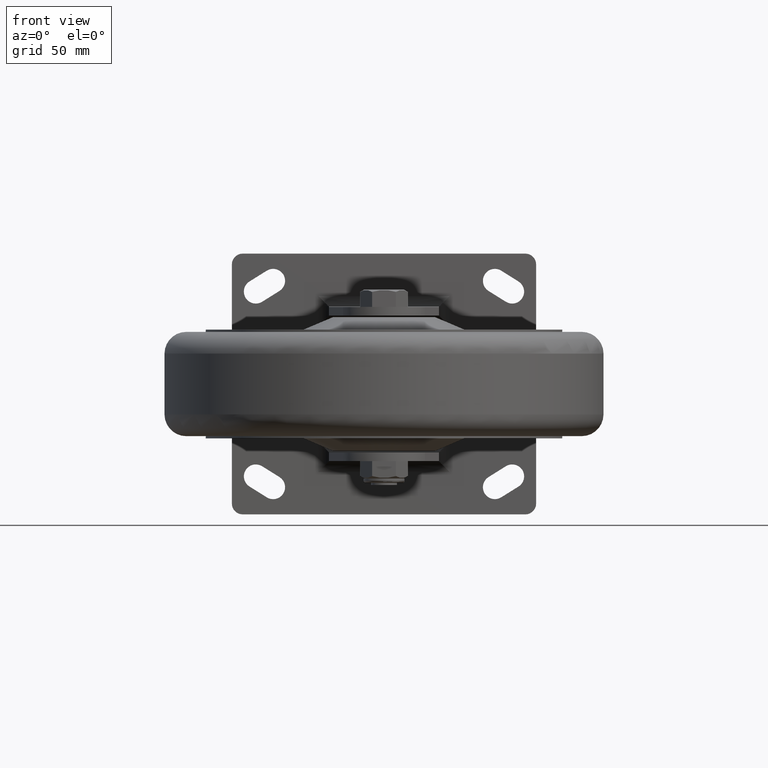
[diagram: clean part render]
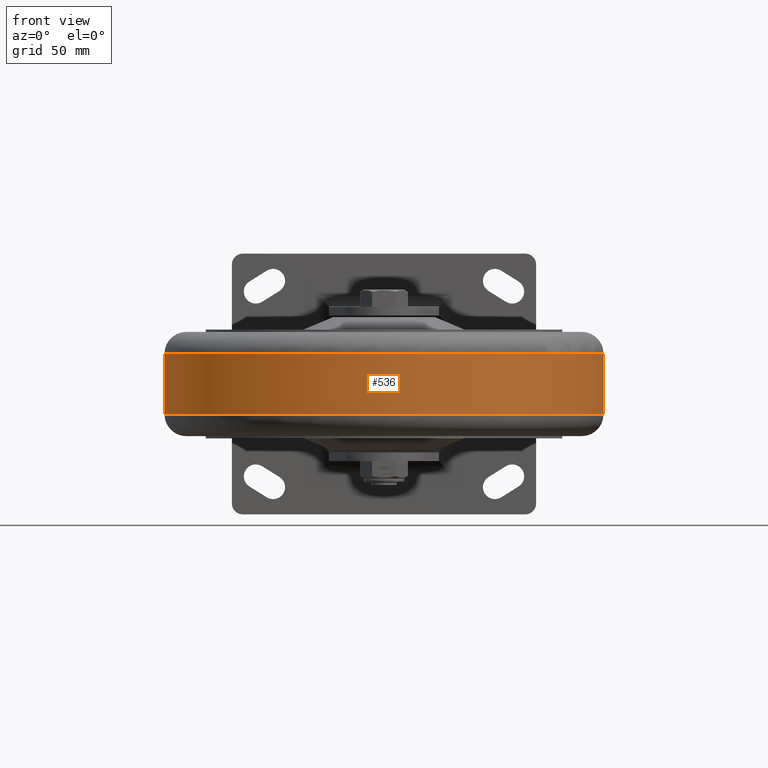
[diagram: same view with one face highlighted and labeled with its STEP entity id]
A machine part, front view. The second image highlights one B-rep face of the part: STEP entity #536.
In plain terms, the highlighted cylindrical surface (partial cylindrical patch) has radius 101 mm, axis along (0, 0, -1).
Its self-contained STEP definition (entity closure, byte-faithful):
#355 = CYLINDRICAL_SURFACE ( 'NONE', #5158, 101.0000000000000000 ) ;
#499 = VECTOR ( 'NONE', #3261, 1000.000000000000000 ) ;
#536 = ADVANCED_FACE ( 'NONE', ( #3874 ), #355, .T. ) ;
#684 = CARTESIAN_POINT ( 'NONE',  ( 101.0000000000000000, 1.236893267138826732E-14, 30.75500100071695186 ) ) ;
#789 = EDGE_CURVE ( 'NONE', #2749, #5346, #3833, .T. ) ;
#858 = CARTESIAN_POINT ( 'NONE',  ( 0.000000000000000000, 0.000000000000000000, -13.99999999999999822 ) ) ;
#882 = DIRECTION ( 'NONE',  ( -1.000000000000000000, 0.000000000000000000, 0.000000000000000000 ) ) ;
#1074 = CIRCLE ( 'NONE', #3583, 101.0000000000000000 ) ;
#1086 = VERTEX_POINT ( 'NONE', #5053 ) ;
#1134 = EDGE_CURVE ( 'NONE', #5346, #1086, #2796, .T. ) ;
#1613 = LINE ( 'NONE', #684, #499 ) ;
#1758 = DIRECTION ( 'NONE',  ( -1.000000000000000000, 0.000000000000000000, 0.000000000000000000 ) ) ;
#1873 = EDGE_LOOP ( 'NONE', ( #4747, #2164, #4829, #4514 ) ) ;
#1979 = CARTESIAN_POINT ( 'NONE',  ( 101.0000000000000000, 1.236893267138826732E-14, 13.99999999999999822 ) ) ;
#2164 = ORIENTED_EDGE ( 'NONE', *, *, #2773, .T. ) ;
#2208 = DIRECTION ( 'NONE',  ( 0.000000000000000000, 0.000000000000000000, -1.000000000000000000 ) ) ;
#2313 = VECTOR ( 'NONE', #2208, 1000.000000000000000 ) ;
#2505 = CARTESIAN_POINT ( 'NONE',  ( 0.000000000000000000, 0.000000000000000000, 30.75500100071695186 ) ) ;
#2645 = DIRECTION ( 'NONE',  ( -0.000000000000000000, -0.000000000000000000, 1.000000000000000000 ) ) ;
#2749 = VERTEX_POINT ( 'NONE', #3179 ) ;
#2773 = EDGE_CURVE ( 'NONE', #5287, #2749, #1074, .T. ) ;
#2796 = CIRCLE ( 'NONE', #3702, 101.0000000000000000 ) ;
#3075 = CARTESIAN_POINT ( 'NONE',  ( -101.0000000000000000, 0.000000000000000000, 30.75500100071695186 ) ) ;
#3179 = CARTESIAN_POINT ( 'NONE',  ( -101.0000000000000000, 0.000000000000000000, 13.99999999999999822 ) ) ;
#3207 = DIRECTION ( 'NONE',  ( -0.000000000000000000, -0.000000000000000000, -1.000000000000000000 ) ) ;
#3261 = DIRECTION ( 'NONE',  ( 0.000000000000000000, 0.000000000000000000, -1.000000000000000000 ) ) ;
#3583 = AXIS2_PLACEMENT_3D ( 'NONE', #4853, #3207, #4488 ) ;
#3702 = AXIS2_PLACEMENT_3D ( 'NONE', #858, #2645, #1758 ) ;
#3833 = LINE ( 'NONE', #3075, #2313 ) ;
#3874 = FACE_OUTER_BOUND ( 'NONE', #1873, .T. ) ;
#4250 = EDGE_CURVE ( 'NONE', #5287, #1086, #1613, .T. ) ;
#4267 = DIRECTION ( 'NONE',  ( 0.000000000000000000, 0.000000000000000000, -1.000000000000000000 ) ) ;
#4488 = DIRECTION ( 'NONE',  ( 1.000000000000000000, 0.000000000000000000, 0.000000000000000000 ) ) ;
#4514 = ORIENTED_EDGE ( 'NONE', *, *, #1134, .T. ) ;
#4747 = ORIENTED_EDGE ( 'NONE', *, *, #4250, .F. ) ;
#4829 = ORIENTED_EDGE ( 'NONE', *, *, #789, .T. ) ;
#4853 = CARTESIAN_POINT ( 'NONE',  ( 0.000000000000000000, 0.000000000000000000, 13.99999999999999822 ) ) ;
#5053 = CARTESIAN_POINT ( 'NONE',  ( 101.0000000000000000, 1.236893267138826732E-14, -13.99999999999999822 ) ) ;
#5158 = AXIS2_PLACEMENT_3D ( 'NONE', #2505, #4267, #882 ) ;
#5177 = CARTESIAN_POINT ( 'NONE',  ( -101.0000000000000000, 0.000000000000000000, -13.99999999999999822 ) ) ;
#5287 = VERTEX_POINT ( 'NONE', #1979 ) ;
#5346 = VERTEX_POINT ( 'NONE', #5177 ) ;